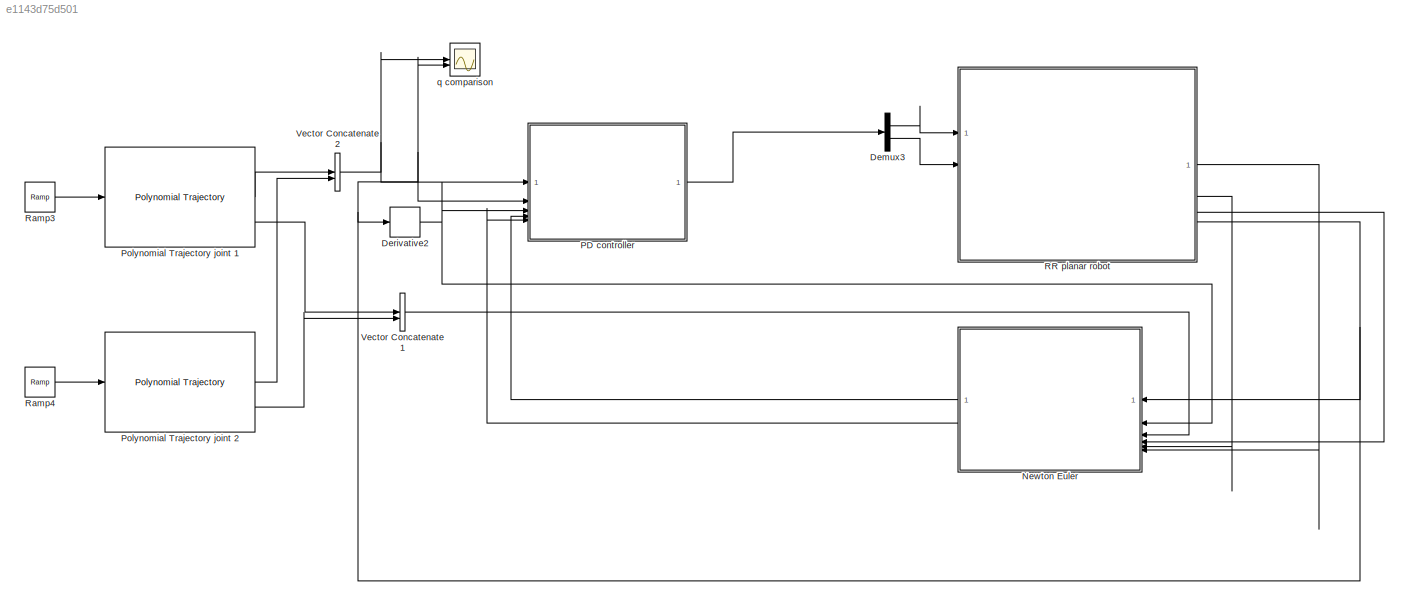
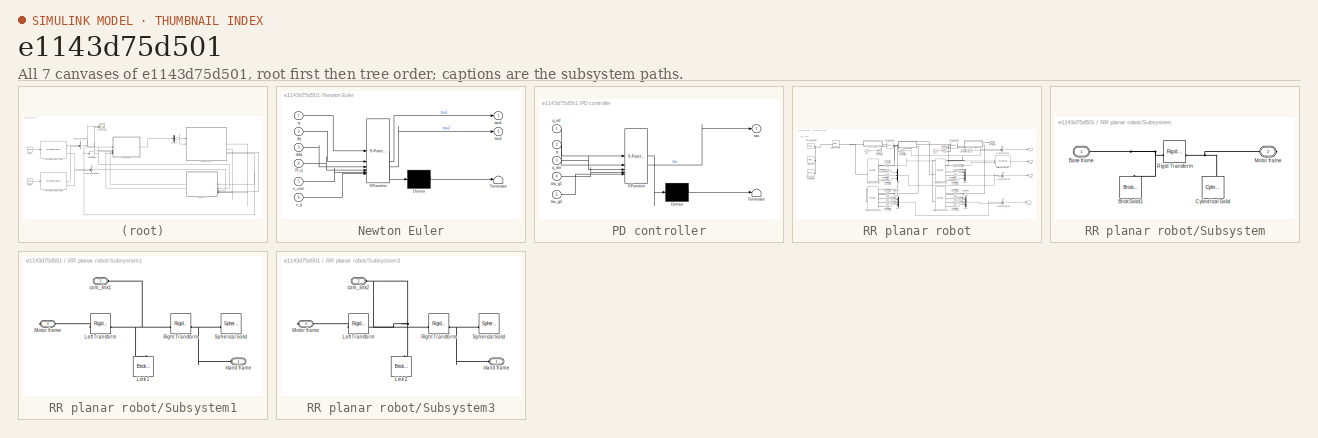
[diagram: thumbnail index - all 7 canvases of the model, root first then tree order]
MODEL slx_e1143d75d501
KIND model
CONFIG AbsTol = auto
CONFIG EnableMultiTasking = off
CONFIG FixedStep = auto
CONFIG MaxStep = auto
CONFIG MinStep = auto
CONFIG RelTol = 1e-3
CONFIG SampleTimeConstraint = Unconstrained
CONFIG SolverName = VariableStepAuto
CONFIG StartTime = 0.0
CONFIG StopTime = 10.0
BLOCK [Demux] Demux3
  Outputs = 2
BLOCK [Derivative] Derivative2
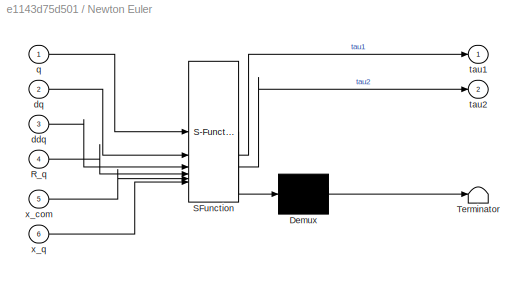
BLOCK [SubSystem] Newton Euler
  ErrorFcn = Stateflow.Translate.translate
  PermitHierarchicalResolution = ExplicitOnly
  SFBlockType = MATLAB Function
  TreatAsAtomicUnit = on
BLOCK [Demux] Newton Euler/ Demux 
  Outputs = 1
BLOCK [S-Function] Newton Euler/ SFunction 
  EnableBusSupport = on
  FunctionName = sf_sfun
  PortCounts = [6 3]
  SFcnIsStateOwnerBlock = off
  SFunctionDeploymentMode = off
  Tag = Stateflow S-Function 7
BLOCK [Terminator] Newton Euler/ Terminator 
BLOCK [Inport] Newton Euler/R_q
  Port = 4
BLOCK [Inport] Newton Euler/ddq
  Port = 3
BLOCK [Inport] Newton Euler/dq
  Port = 2
BLOCK [Inport] Newton Euler/q
BLOCK [Outport] Newton Euler/tau1
BLOCK [Outport] Newton Euler/tau2
  Port = 2
BLOCK [Inport] Newton Euler/x_com
  Port = 5
BLOCK [Inport] Newton Euler/x_q
  Port = 6
BLOCK [SubSystem] PD controller
  ErrorFcn = Stateflow.Translate.translate
  PermitHierarchicalResolution = ExplicitOnly
  SFBlockType = MATLAB Function
  TreatAsAtomicUnit = on
BLOCK [Demux] PD controller/ Demux 
  Outputs = 1
BLOCK [S-Function] PD controller/ SFunction 
  EnableBusSupport = on
  FunctionName = sf_sfun
  PortCounts = [5 2]
  SFcnIsStateOwnerBlock = off
  SFunctionDeploymentMode = off
  Tag = Stateflow S-Function 6
BLOCK [Terminator] PD controller/ Terminator 
BLOCK [Inport] PD controller/q
  Port = 2
BLOCK [Inport] PD controller/q_dot
  Port = 3
BLOCK [Inport] PD controller/q_ref
BLOCK [Outport] PD controller/tau
BLOCK [Inport] PD controller/tau_g1
  Port = 4
BLOCK [Inport] PD controller/tau_g2
  Port = 5
BLOCK [Reference] Polynomial Trajectory joint 1  REF=robotcorelib/Polynomial Trajectory
  LibrarySourceBlock = robotutilslib/Polynomial Trajectory
  SourceBlock = robotcorelib/Polynomial Trajectory
  SourceType = robotics.slcore.internal.block.PolyTrajSys
BLOCK [Reference] Polynomial Trajectory joint 2  REF=robotcorelib/Polynomial Trajectory
  LibrarySourceBlock = robotutilslib/Polynomial Trajectory
  SourceBlock = robotcorelib/Polynomial Trajectory
  SourceType = robotics.slcore.internal.block.PolyTrajSys
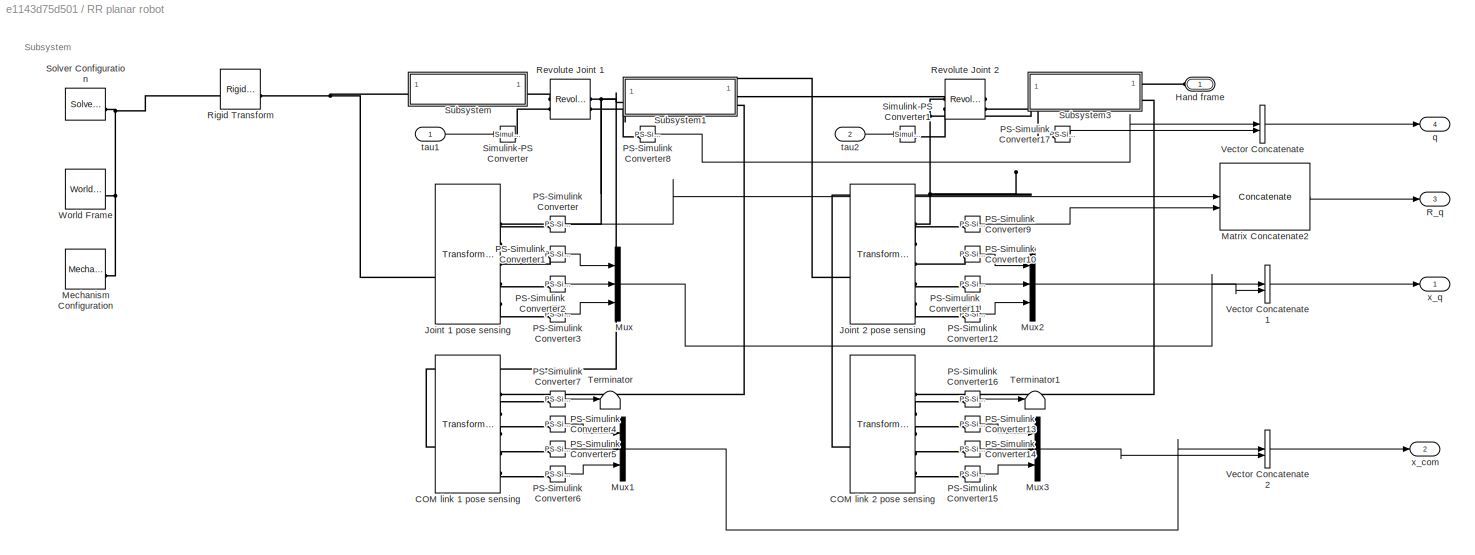
BLOCK [SubSystem] RR planar robot
BLOCK [Reference] RR planar robot/COM link 1 pose sensing  REF=sm_lib/Frames and
Transforms/Transform
Sensor
  SourceBlock = sm_lib/Frames and\nTransforms/Transform\nSensor
  SourceType = Transform\nSensor
BLOCK [Reference] RR planar robot/COM link 2 pose sensing  REF=sm_lib/Frames and
Transforms/Transform
Sensor
  SourceBlock = sm_lib/Frames and\nTransforms/Transform\nSensor
  SourceType = Transform\nSensor
BLOCK [PMIOPort] RR planar robot/Hand frame
  Side = Left
BLOCK [Reference] RR planar robot/Joint 1 pose sensing  REF=sm_lib/Frames and
Transforms/Transform
Sensor
  SourceBlock = sm_lib/Frames and\nTransforms/Transform\nSensor
  SourceType = Transform\nSensor
BLOCK [Reference] RR planar robot/Joint 2 pose sensing  REF=sm_lib/Frames and
Transforms/Transform
Sensor
  SourceBlock = sm_lib/Frames and\nTransforms/Transform\nSensor
  SourceType = Transform\nSensor
BLOCK [Concatenate] RR planar robot/Matrix Concatenate2
  ConcatenateDimension = 3
  Mode = Multidimensional array
BLOCK [Reference] RR planar robot/Mechanism Configuration  REF=sm_lib/Utilities/Mechanism
Configuration
  SourceBlock = sm_lib/Utilities/Mechanism\nConfiguration
  SourceType = Mechanism\nConfiguration
BLOCK [Mux] RR planar robot/Mux
  DisplayOption = bar
  Inputs = 3
BLOCK [Mux] RR planar robot/Mux1
  DisplayOption = bar
  Inputs = 3
BLOCK [Mux] RR planar robot/Mux2
  DisplayOption = bar
  Inputs = 3
BLOCK [Mux] RR planar robot/Mux3
  DisplayOption = bar
  Inputs = 3
BLOCK [Reference] RR planar robot/PS-Simulink Converter  REF=nesl_utility/PS-Simulink
Converter
  SourceBlock = nesl_utility/PS-Simulink\nConverter
  SourceType = PS-Simulink\nConverter
BLOCK [Reference] RR planar robot/PS-Simulink Converter1  REF=nesl_utility/PS-Simulink
Converter
  SourceBlock = nesl_utility/PS-Simulink\nConverter
  SourceType = PS-Simulink\nConverter
BLOCK [Reference] RR planar robot/PS-Simulink Converter10  REF=nesl_utility/PS-Simulink
Converter
  SourceBlock = nesl_utility/PS-Simulink\nConverter
  SourceType = PS-Simulink\nConverter
BLOCK [Reference] RR planar robot/PS-Simulink Converter11  REF=nesl_utility/PS-Simulink
Converter
  SourceBlock = nesl_utility/PS-Simulink\nConverter
  SourceType = PS-Simulink\nConverter
BLOCK [Reference] RR planar robot/PS-Simulink Converter12  REF=nesl_utility/PS-Simulink
Converter
  SourceBlock = nesl_utility/PS-Simulink\nConverter
  SourceType = PS-Simulink\nConverter
BLOCK [Reference] RR planar robot/PS-Simulink Converter13  REF=nesl_utility/PS-Simulink
Converter
  SourceBlock = nesl_utility/PS-Simulink\nConverter
  SourceType = PS-Simulink\nConverter
BLOCK [Reference] RR planar robot/PS-Simulink Converter14  REF=nesl_utility/PS-Simulink
Converter
  SourceBlock = nesl_utility/PS-Simulink\nConverter
  SourceType = PS-Simulink\nConverter
BLOCK [Reference] RR planar robot/PS-Simulink Converter15  REF=nesl_utility/PS-Simulink
Converter
  SourceBlock = nesl_utility/PS-Simulink\nConverter
  SourceType = PS-Simulink\nConverter
BLOCK [Reference] RR planar robot/PS-Simulink Converter16  REF=nesl_utility/PS-Simulink
Converter
  SourceBlock = nesl_utility/PS-Simulink\nConverter
  SourceType = PS-Simulink\nConverter
BLOCK [Reference] RR planar robot/PS-Simulink Converter17  REF=nesl_utility/PS-Simulink
Converter
  SourceBlock = nesl_utility/PS-Simulink\nConverter
  SourceType = PS-Simulink\nConverter
BLOCK [Reference] RR planar robot/PS-Simulink Converter2  REF=nesl_utility/PS-Simulink
Converter
  SourceBlock = nesl_utility/PS-Simulink\nConverter
  SourceType = PS-Simulink\nConverter
BLOCK [Reference] RR planar robot/PS-Simulink Converter3  REF=nesl_utility/PS-Simulink
Converter
  SourceBlock = nesl_utility/PS-Simulink\nConverter
  SourceType = PS-Simulink\nConverter
BLOCK [Reference] RR planar robot/PS-Simulink Converter4  REF=nesl_utility/PS-Simulink
Converter
  SourceBlock = nesl_utility/PS-Simulink\nConverter
  SourceType = PS-Simulink\nConverter
BLOCK [Reference] RR planar robot/PS-Simulink Converter5  REF=nesl_utility/PS-Simulink
Converter
  SourceBlock = nesl_utility/PS-Simulink\nConverter
  SourceType = PS-Simulink\nConverter
BLOCK [Reference] RR planar robot/PS-Simulink Converter6  REF=nesl_utility/PS-Simulink
Converter
  SourceBlock = nesl_utility/PS-Simulink\nConverter
  SourceType = PS-Simulink\nConverter
BLOCK [Reference] RR planar robot/PS-Simulink Converter7  REF=nesl_utility/PS-Simulink
Converter
  SourceBlock = nesl_utility/PS-Simulink\nConverter
  SourceType = PS-Simulink\nConverter
BLOCK [Reference] RR planar robot/PS-Simulink Converter8  REF=nesl_utility/PS-Simulink
Converter
  SourceBlock = nesl_utility/PS-Simulink\nConverter
  SourceType = PS-Simulink\nConverter
BLOCK [Reference] RR planar robot/PS-Simulink Converter9  REF=nesl_utility/PS-Simulink
Converter
  SourceBlock = nesl_utility/PS-Simulink\nConverter
  SourceType = PS-Simulink\nConverter
BLOCK [Outport] RR planar robot/R_q
  Port = 3
BLOCK [Reference] RR planar robot/Revolute Joint 1  REF=sm_lib/Joints/Revolute Joint
  SourceBlock = sm_lib/Joints/Revolute Joint
  SourceType = Revolute Joint
BLOCK [Reference] RR planar robot/Revolute Joint 2  REF=sm_lib/Joints/Revolute Joint
  SourceBlock = sm_lib/Joints/Revolute Joint
  SourceType = Revolute Joint
BLOCK [Reference] RR planar robot/Rigid Transform  REF=sm_lib/Frames and
Transforms/Rigid
Transform
  SourceBlock = sm_lib/Frames and\nTransforms/Rigid\nTransform
  SourceType = Rigid\nTransform
BLOCK [Reference] RR planar robot/Simulink-PS Converter  REF=nesl_utility/Simulink-PS
Converter
  SourceBlock = nesl_utility/Simulink-PS\nConverter
  SourceType = Simulink-PS\nConverter
BLOCK [Reference] RR planar robot/Simulink-PS Converter1  REF=nesl_utility/Simulink-PS
Converter
  SourceBlock = nesl_utility/Simulink-PS\nConverter
  SourceType = Simulink-PS\nConverter
BLOCK [Reference] RR planar robot/Solver Configuration  REF=nesl_utility/Solver
Configuration
  SourceBlock = nesl_utility/Solver\nConfiguration
  SourceType = Solver\nConfiguration
BLOCK [SubSystem] RR planar robot/Subsystem
BLOCK [PMIOPort] RR planar robot/Subsystem/Base frame
  Side = Left
BLOCK [Reference] RR planar robot/Subsystem/Brick Solid1  REF=sm_lib/Body Elements/Brick Solid
  NameLocation = right
  SourceBlock = sm_lib/Body Elements/Brick Solid
  SourceType = Brick Solid
BLOCK [Reference] RR planar robot/Subsystem/Cylindrical Solid  REF=sm_lib/Body Elements/Cylindrical Solid
  NameLocation = right
  SourceBlock = sm_lib/Body Elements/Cylindrical Solid
  SourceType = Cylindrical Solid
BLOCK [PMIOPort] RR planar robot/Subsystem/Motor frame
  Port = 2
  Side = Right
BLOCK [Reference] RR planar robot/Subsystem/Rigid Transform  REF=sm_lib/Frames and
Transforms/Rigid
Transform
  SourceBlock = sm_lib/Frames and\nTransforms/Rigid\nTransform
  SourceType = Rigid\nTransform
BLOCK [SubSystem] RR planar robot/Subsystem1
  NameLocation = top
BLOCK [PMIOPort] RR planar robot/Subsystem1/Hand frame
  Side = Left
BLOCK [Reference] RR planar robot/Subsystem1/Left Transform  REF=sm_lib/Frames and
Transforms/Rigid
Transform
  SourceBlock = sm_lib/Frames and\nTransforms/Rigid\nTransform
  SourceType = Rigid\nTransform
BLOCK [Reference] RR planar robot/Subsystem1/Link 1  REF=sm_lib/Body Elements/Brick Solid
  NameLocation = right
  SourceBlock = sm_lib/Body Elements/Brick Solid
  SourceType = Brick Solid
BLOCK [PMIOPort] RR planar robot/Subsystem1/Motor frame
  Port = 3
  Side = Right
BLOCK [Reference] RR planar robot/Subsystem1/Right Transform  REF=sm_lib/Frames and
Transforms/Rigid
Transform
  SourceBlock = sm_lib/Frames and\nTransforms/Rigid\nTransform
  SourceType = Rigid\nTransform
BLOCK [Reference] RR planar robot/Subsystem1/Spherical Solid  REF=sm_lib/Body Elements/Spherical Solid
  SourceBlock = sm_lib/Body Elements/Spherical Solid
  SourceType = Spherical Solid
BLOCK [PMIOPort] RR planar robot/Subsystem1/com_link1
  Port = 2
  Side = Left
BLOCK [SubSystem] RR planar robot/Subsystem3
  NameLocation = top
BLOCK [PMIOPort] RR planar robot/Subsystem3/Hand frame
  Side = Left
BLOCK [Reference] RR planar robot/Subsystem3/Left Transform  REF=sm_lib/Frames and
Transforms/Rigid
Transform
  SourceBlock = sm_lib/Frames and\nTransforms/Rigid\nTransform
  SourceType = Rigid\nTransform
BLOCK [Reference] RR planar robot/Subsystem3/Link 2  REF=sm_lib/Body Elements/Brick Solid
  NameLocation = right
  SourceBlock = sm_lib/Body Elements/Brick Solid
  SourceType = Brick Solid
BLOCK [PMIOPort] RR planar robot/Subsystem3/Motor frame
  Port = 3
  Side = Right
BLOCK [Reference] RR planar robot/Subsystem3/Right Transform  REF=sm_lib/Frames and
Transforms/Rigid
Transform
  SourceBlock = sm_lib/Frames and\nTransforms/Rigid\nTransform
  SourceType = Rigid\nTransform
BLOCK [Reference] RR planar robot/Subsystem3/Spherical Solid  REF=sm_lib/Body Elements/Spherical Solid
  SourceBlock = sm_lib/Body Elements/Spherical Solid
  SourceType = Spherical Solid
BLOCK [PMIOPort] RR planar robot/Subsystem3/com_link2
  Port = 2
  Side = Left
BLOCK [Terminator] RR planar robot/Terminator
BLOCK [Terminator] RR planar robot/Terminator1
BLOCK [Concatenate] RR planar robot/Vector Concatenate
  ConcatenateDimension = 2
  Mode = Multidimensional array
BLOCK [Concatenate] RR planar robot/Vector Concatenate1
  ConcatenateDimension = 2
  Mode = Multidimensional array
BLOCK [Concatenate] RR planar robot/Vector Concatenate2
  ConcatenateDimension = 2
  Mode = Multidimensional array
BLOCK [Reference] RR planar robot/World Frame  REF=sm_lib/Frames and
Transforms/World Frame
  SourceBlock = sm_lib/Frames and\nTransforms/World Frame
  SourceType = World Frame
BLOCK [Outport] RR planar robot/q
  Port = 4
BLOCK [Inport] RR planar robot/tau1
BLOCK [Inport] RR planar robot/tau2
  Port = 2
BLOCK [Outport] RR planar robot/x_com
  Port = 2
BLOCK [Outport] RR planar robot/x_q
BLOCK [Reference] Ramp3  REF=simulink/Sources/Ramp
  SourceBlock = simulink/Sources/Ramp
  SourceType = Ramp
BLOCK [Reference] Ramp4  REF=simulink/Sources/Ramp
  SourceBlock = simulink/Sources/Ramp
  SourceType = Ramp
BLOCK [Concatenate] Vector Concatenate1
BLOCK [Concatenate] Vector Concatenate2
BLOCK [Scope] q comparison
  Floating = off
  NumInputPorts = 2
  ScopeSpecificationString = Simulink.scopes.TimeScopeBlockCfg('CurrentConfiguration', extmgr.ConfigurationSet(extmgr.Configuration('Core','General UI',true),extmgr.Configuration('Core','Source UI',true),extmgr.Configuration('Sources','WiredSimulink',true),extmgr.Configuration('Visuals','Time Domain',true,'SerializedDisplays',{struct('MinYLimReal','-0.73086','MaxYLimReal','1.34172','YLabelReal','','MinYLimMag','0.00000','MaxY...<+1551ch>
ANNOTATION RR planar robot: Subsystem
LINE Demux3:1 -> RR planar robot:1
LINE Demux3:2 -> RR planar robot:2
NET Derivative2:1 -> Newton Euler:2, PD controller:3
LINE Newton Euler:1 -> PD controller:4
LINE Newton Euler:2 -> PD controller:5
LINE PD controller:1 -> Demux3:1
LINE Polynomial Trajectory joint 1:1 -> Vector Concatenate2:1
LINE Polynomial Trajectory joint 1:3 -> Vector Concatenate1:1
LINE Polynomial Trajectory joint 2:1 -> Vector Concatenate2:2
LINE Polynomial Trajectory joint 2:3 -> Vector Concatenate1:2
LINE RR planar robot/Matrix Concatenate2:1 -> RR planar robot/R_q:1
LINE RR planar robot/Mux1:1 -> RR planar robot/Vector Concatenate2:1
LINE RR planar robot/Mux2:1 -> RR planar robot/Vector Concatenate1:2
LINE RR planar robot/Mux3:1 -> RR planar robot/Vector Concatenate2:2
LINE RR planar robot/Mux:1 -> RR planar robot/Vector Concatenate1:1
LINE RR planar robot/PS-Simulink Converter10:1 -> RR planar robot/Mux2:1
LINE RR planar robot/PS-Simulink Converter11:1 -> RR planar robot/Mux2:2
LINE RR planar robot/PS-Simulink Converter12:1 -> RR planar robot/Mux2:3
LINE RR planar robot/PS-Simulink Converter13:1 -> RR planar robot/Mux3:1
LINE RR planar robot/PS-Simulink Converter14:1 -> RR planar robot/Mux3:2
LINE RR planar robot/PS-Simulink Converter15:1 -> RR planar robot/Mux3:3
LINE RR planar robot/PS-Simulink Converter16:1 -> RR planar robot/Terminator1:1
LINE RR planar robot/PS-Simulink Converter17:1 -> RR planar robot/Vector Concatenate:2
LINE RR planar robot/PS-Simulink Converter1:1 -> RR planar robot/Mux:1
LINE RR planar robot/PS-Simulink Converter2:1 -> RR planar robot/Mux:2
LINE RR planar robot/PS-Simulink Converter3:1 -> RR planar robot/Mux:3
LINE RR planar robot/PS-Simulink Converter4:1 -> RR planar robot/Mux1:1
LINE RR planar robot/PS-Simulink Converter5:1 -> RR planar robot/Mux1:2
LINE RR planar robot/PS-Simulink Converter6:1 -> RR planar robot/Mux1:3
LINE RR planar robot/PS-Simulink Converter7:1 -> RR planar robot/Terminator:1
LINE RR planar robot/PS-Simulink Converter8:1 -> RR planar robot/Vector Concatenate:1
LINE RR planar robot/PS-Simulink Converter9:1 -> RR planar robot/Matrix Concatenate2:2
LINE RR planar robot/PS-Simulink Converter:1 -> RR planar robot/Matrix Concatenate2:1
LINE RR planar robot/Vector Concatenate1:1 -> RR planar robot/x_q:1
LINE RR planar robot/Vector Concatenate2:1 -> RR planar robot/x_com:1
LINE RR planar robot/Vector Concatenate:1 -> RR planar robot/q:1
LINE RR planar robot/tau1:1 -> RR planar robot/Simulink-PS Converter:1
LINE RR planar robot/tau2:1 -> RR planar robot/Simulink-PS Converter1:1
LINE RR planar robot:1 -> Newton Euler:6
LINE RR planar robot:2 -> Newton Euler:5
LINE RR planar robot:3 -> Newton Euler:4
NET RR planar robot:4 -> Derivative2:1, Newton Euler:1, PD controller:2, q comparison:2
LINE Ramp3:1 -> Polynomial Trajectory joint 1:1
LINE Ramp4:1 -> Polynomial Trajectory joint 2:1
LINE Vector Concatenate1:1 -> Newton Euler:3
NET Vector Concatenate2:1 -> PD controller:1, q comparison:1
PNET net1: RR planar robot/COM link 1 pose sensing:LConn1 -- RR planar robot/Joint 1 pose sensing:RConn1 -- RR planar robot/Joint 2 pose sensing:LConn1 -- RR planar robot/Revolute Joint 1:RConn1 -- RR planar robot/Subsystem1:RConn1
PLINE RR planar robot/COM link 1 pose sensing:RConn1 -- RR planar robot/Subsystem1:LConn2
PLINE RR planar robot/COM link 1 pose sensing:RConn2 -- RR planar robot/PS-Simulink Converter7:LConn1
PLINE RR planar robot/COM link 1 pose sensing:RConn3 -- RR planar robot/PS-Simulink Converter4:LConn1
PLINE RR planar robot/COM link 1 pose sensing:RConn4 -- RR planar robot/PS-Simulink Converter5:LConn1
PLINE RR planar robot/COM link 1 pose sensing:RConn5 -- RR planar robot/PS-Simulink Converter6:LConn1
PNET net2: RR planar robot/COM link 2 pose sensing:LConn1 -- RR planar robot/Joint 2 pose sensing:RConn1 -- RR planar robot/Revolute Joint 2:RConn1 -- RR planar robot/Subsystem3:RConn1
PLINE RR planar robot/COM link 2 pose sensing:RConn1 -- RR planar robot/Subsystem3:LConn2
PLINE RR planar robot/COM link 2 pose sensing:RConn2 -- RR planar robot/PS-Simulink Converter16:LConn1
PLINE RR planar robot/COM link 2 pose sensing:RConn3 -- RR planar robot/PS-Simulink Converter13:LConn1
PLINE RR planar robot/COM link 2 pose sensing:RConn4 -- RR planar robot/PS-Simulink Converter14:LConn1
PLINE RR planar robot/COM link 2 pose sensing:RConn5 -- RR planar robot/PS-Simulink Converter15:LConn1
PLINE RR planar robot/Hand frame:RConn1 -- RR planar robot/Subsystem3:LConn1
PNET net3: RR planar robot/Joint 1 pose sensing:LConn1 -- RR planar robot/Rigid Transform:RConn1 -- RR planar robot/Subsystem:LConn1
PLINE RR planar robot/Joint 1 pose sensing:RConn2 -- RR planar robot/PS-Simulink Converter:LConn1
PLINE RR planar robot/Joint 1 pose sensing:RConn3 -- RR planar robot/PS-Simulink Converter1:LConn1
PLINE RR planar robot/Joint 1 pose sensing:RConn4 -- RR planar robot/PS-Simulink Converter2:LConn1
PLINE RR planar robot/Joint 1 pose sensing:RConn5 -- RR planar robot/PS-Simulink Converter3:LConn1
PLINE RR planar robot/Joint 2 pose sensing:RConn2 -- RR planar robot/PS-Simulink Converter9:LConn1
PLINE RR planar robot/Joint 2 pose sensing:RConn3 -- RR planar robot/PS-Simulink Converter10:LConn1
PLINE RR planar robot/Joint 2 pose sensing:RConn4 -- RR planar robot/PS-Simulink Converter11:LConn1
PLINE RR planar robot/Joint 2 pose sensing:RConn5 -- RR planar robot/PS-Simulink Converter12:LConn1
PNET net4: RR planar robot/Mechanism Configuration:RConn1 -- RR planar robot/Rigid Transform:LConn1 -- RR planar robot/Solver Configuration:RConn1 -- RR planar robot/World Frame:RConn1
PLINE RR planar robot/PS-Simulink Converter17:LConn1 -- RR planar robot/Revolute Joint 2:RConn2
PLINE RR planar robot/PS-Simulink Converter8:LConn1 -- RR planar robot/Revolute Joint 1:RConn2
PLINE RR planar robot/Revolute Joint 1:LConn1 -- RR planar robot/Subsystem:RConn1
PLINE RR planar robot/Revolute Joint 1:LConn2 -- RR planar robot/Simulink-PS Converter:RConn1
PLINE RR planar robot/Revolute Joint 2:LConn1 -- RR planar robot/Subsystem1:LConn1
PLINE RR planar robot/Revolute Joint 2:LConn2 -- RR planar robot/Simulink-PS Converter1:RConn1
PNET net5: RR planar robot/Subsystem/Base frame:RConn1 -- RR planar robot/Subsystem/Brick Solid1:RConn1 -- RR planar robot/Subsystem/Rigid Transform:LConn1
PNET net6: RR planar robot/Subsystem/Cylindrical Solid:RConn1 -- RR planar robot/Subsystem/Motor frame:RConn1 -- RR planar robot/Subsystem/Rigid Transform:RConn1
PNET net7: RR planar robot/Subsystem1/Hand frame:RConn1 -- RR planar robot/Subsystem1/Right Transform:RConn1 -- RR planar robot/Subsystem1/Spherical Solid:RConn1
PLINE RR planar robot/Subsystem1/Left Transform:LConn1 -- RR planar robot/Subsystem1/Motor frame:RConn1
PNET net8: RR planar robot/Subsystem1/Left Transform:RConn1 -- RR planar robot/Subsystem1/Link 1:RConn1 -- RR planar robot/Subsystem1/Right Transform:LConn1 -- RR planar robot/Subsystem1/com_link1:RConn1
PNET net9: RR planar robot/Subsystem3/Hand frame:RConn1 -- RR planar robot/Subsystem3/Right Transform:RConn1 -- RR planar robot/Subsystem3/Spherical Solid:RConn1
PLINE RR planar robot/Subsystem3/Left Transform:LConn1 -- RR planar robot/Subsystem3/Motor frame:RConn1
PNET net10: RR planar robot/Subsystem3/Left Transform:RConn1 -- RR planar robot/Subsystem3/Link 2:RConn1 -- RR planar robot/Subsystem3/Right Transform:LConn1 -- RR planar robot/Subsystem3/com_link2:RConn1
note: NET lines group one-source signal fan-out (src -> all destinations, sorted); 1:1 wires keep LINE; PNET lines group multi-terminal physical nets as a canonical sorted terminal list (undirected conserving connections); 2-terminal nets keep the pairwise PLINE form
CHART PD controller states=1 transitions=1
  STATE_LABEL 'eML_blk_kernel()'
  STATE_LABEL 'SCRIPT:\nfunction tau  = PDcontroller(q_ref, q, q_dot, tau_g1, tau_g2)\n\nKp = 100;\nKd = 1;\n\ntau = zeros(2,1);\ntau(1) = Kp*(q_ref(1)-q(1))-Kd*q_dot(1)+tau_g1;\ntau(2) = Kp*(q_ref(2)-q(2))-Kd*q_dot(2)+tau_g2;\n\nend'
CHART Newton Euler states=1 transitions=1
  STATE_LABEL 'eML_blk_kernel()'
  STATE_LABEL 'SCRIPT:\nfunction [tau1,tau2] = NewtonEuler(q, dq, ddq, R_q, x_com, x_q)\n    % Function to compute joint torques using the Newton-Euler method\n    % Inputs:\n    %   q   - Joint positions\n    %   dq  - Joint velocities\n    %   ddq - Joint accelerations\n    % Output:\n    %   tau - Joint torques\n\n    %% Forward Recursive Algorithm\n\n    % Define the type and number of joints\n    jointType = [0,0]; % 0 ...<+2265ch>'
CHART  states=0 transitions=0
CHART  states=0 transitions=0
